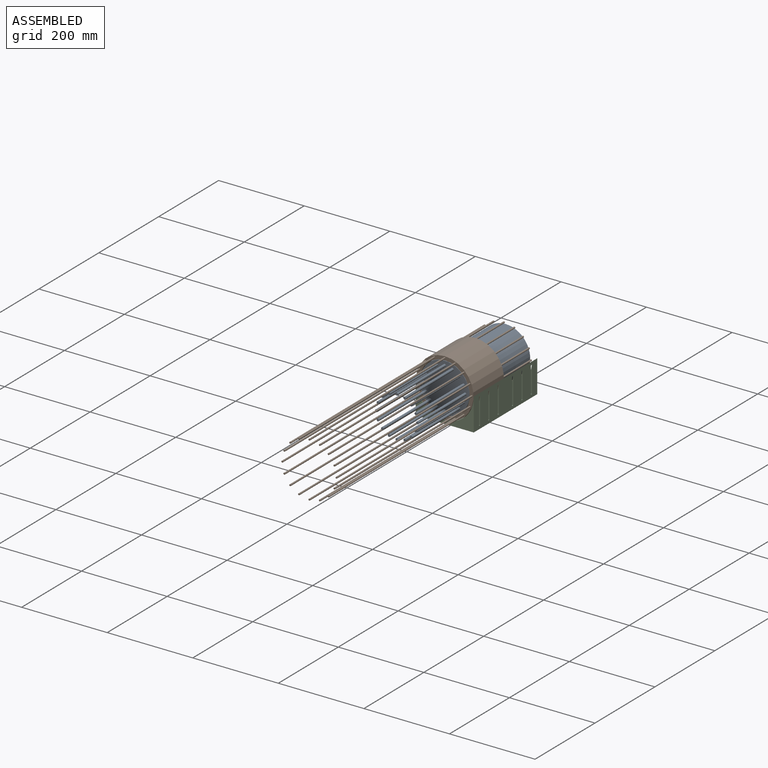
[diagram: assembled view]
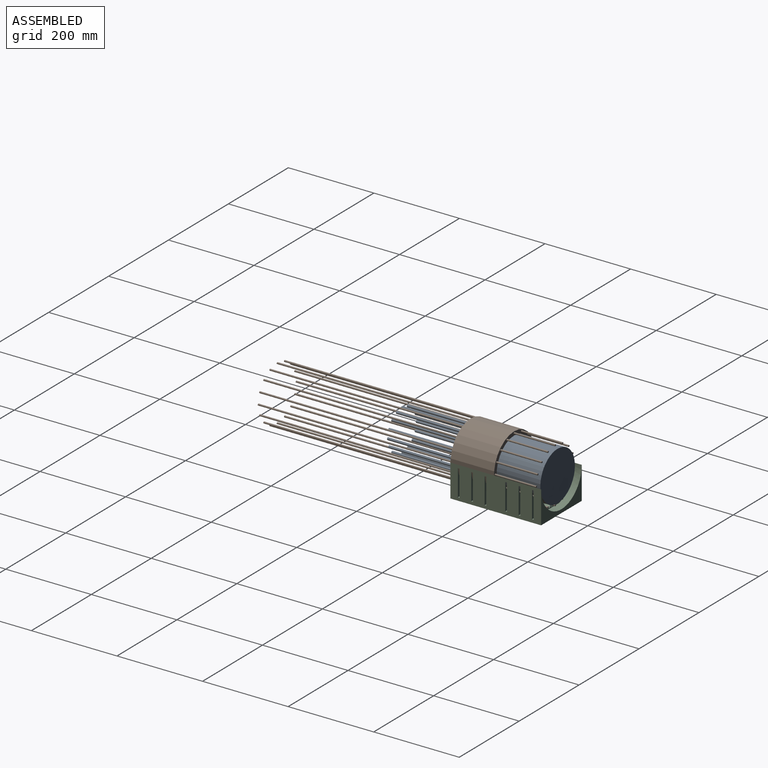
[diagram: assembled view, second angle]
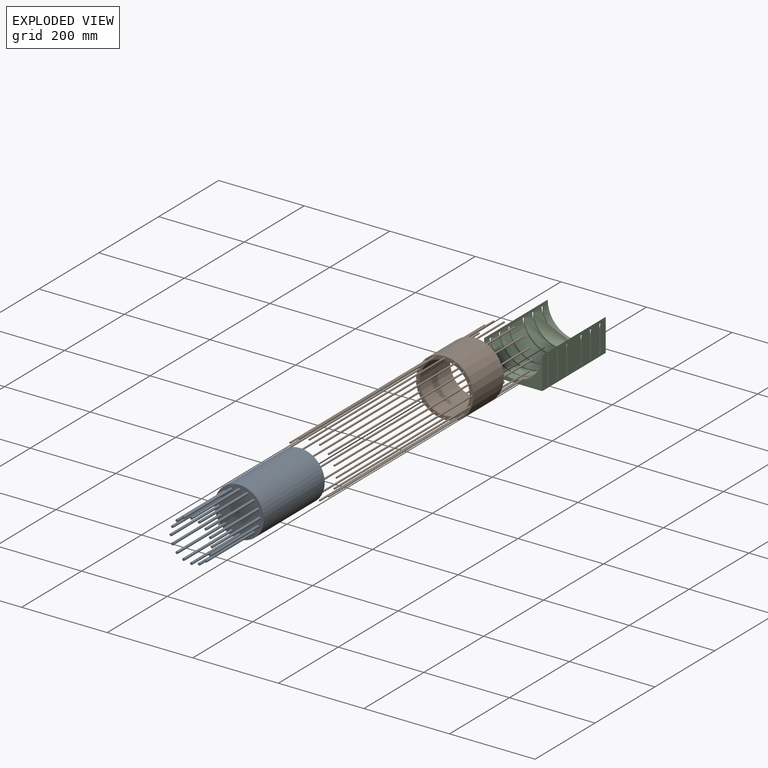
[diagram: exploded view]
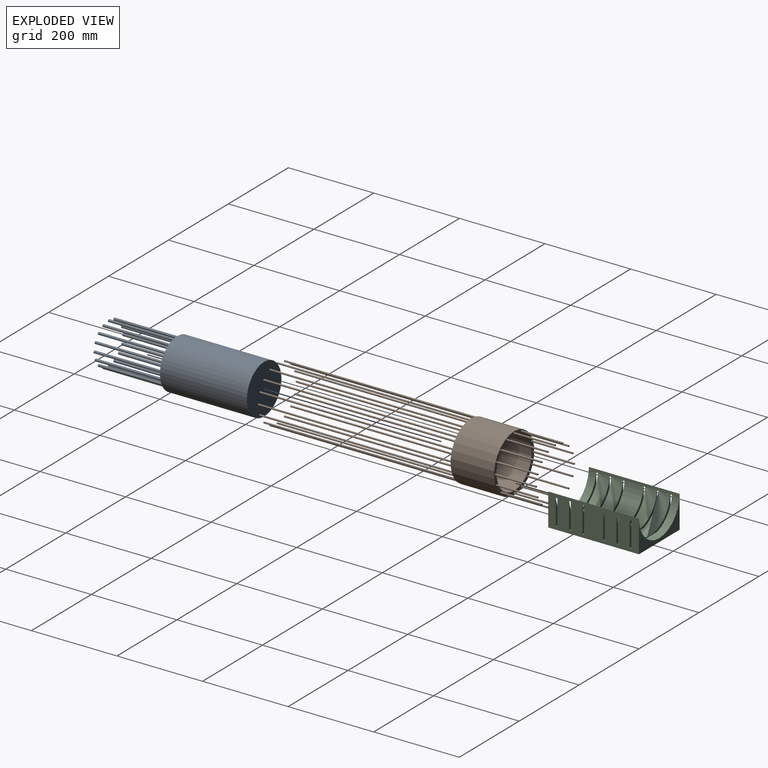
[diagram: exploded view, second angle]
ASSEMBLY  parts=3 mates=2
PART A: 35 faces, bbox 115.3x363.2x115.3 mm
  f0: cylinder r=57.63mm len=203.2mm, axis (0,1,0), area 73581.8mm2, adj f1,f2
  f1: plane 115.27x115.27mm, normal (0,-1,0), area 10009.7mm2, adj f0,f3,f5,f7,f9,f11,f13,f15
  f2: plane 115.27x115.27mm, normal (0,1,0), area 10434.8mm2, adj f0
  f3: cylinder r=2.91mm len=160.02mm, axis (0,1,0), area 2923.8mm2, adj f1,f4
  f4: plane 5.82x5.82mm, normal (0,-1,0), area 26.6mm2, adj f3
  f5: cylinder r=2.91mm len=160.02mm, axis (0,1,0), area 2923.8mm2, adj f1,f6
  f6: plane 5.82x5.82mm, normal (0,-1,0), area 26.6mm2, adj f5
  f7: cylinder r=2.91mm len=160.02mm, axis (0,1,0), area 2923.8mm2, adj f1,f8
  f8: plane 5.82x5.82mm, normal (0,-1,0), area 26.6mm2, adj f7
  f9: cylinder r=2.91mm len=160.02mm, axis (0,1,0), area 2923.8mm2, adj f1,f10
  f10: plane 5.82x5.82mm, normal (0,-1,0), area 26.6mm2, adj f9
  f11: cylinder r=2.91mm len=160.02mm, axis (0,1,0), area 2923.8mm2, adj f1,f12
  f12: plane 5.82x5.82mm, normal (0,-1,0), area 26.6mm2, adj f11
  f13: cylinder r=2.91mm len=160.02mm, axis (0,1,0), area 2923.8mm2, adj f1,f14
  f14: plane 5.82x5.82mm, normal (0,-1,0), area 26.6mm2, adj f13
  f15: cylinder r=2.91mm len=160.02mm, axis (0,1,0), area 2923.8mm2, adj f1,f16
  f16: plane 5.82x5.82mm, normal (0,-1,0), area 26.6mm2, adj f15
  f17: cylinder r=2.91mm len=160.02mm, axis (0,1,0), area 2923.8mm2, adj f1,f18
  f18: plane 5.82x5.82mm, normal (0,-1,0), area 26.6mm2, adj f17
  f19: cylinder r=2.91mm len=160.02mm, axis (0,1,0), area 2923.8mm2, adj f1,f20
  f20: plane 5.82x5.82mm, normal (0,-1,0), area 26.6mm2, adj f19
  f21: cylinder r=2.91mm len=160.02mm, axis (0,1,0), area 2923.8mm2, adj f1,f22
  f22: plane 5.82x5.82mm, normal (0,-1,0), area 26.6mm2, adj f21
  f23: cylinder r=2.91mm len=160.02mm, axis (0,1,0), area 2923.8mm2, adj f1,f24
  f24: plane 5.82x5.82mm, normal (0,-1,0), area 26.6mm2, adj f23
  f25: cylinder r=2.91mm len=160.02mm, axis (0,1,0), area 2923.8mm2, adj f1,f26
  f26: plane 5.82x5.82mm, normal (0,-1,0), area 26.6mm2, adj f25
  f27: cylinder r=2.91mm len=160.02mm, axis (0,1,0), area 2923.8mm2, adj f1,f28
  f28: plane 5.82x5.82mm, normal (0,-1,0), area 26.6mm2, adj f27
  f29: cylinder r=2.91mm len=160.02mm, axis (0,1,0), area 2923.8mm2, adj f1,f30
  f30: plane 5.82x5.82mm, normal (0,-1,0), area 26.6mm2, adj f29
  f31: cylinder r=2.91mm len=160.02mm, axis (0,1,0), area 2923.8mm2, adj f1,f32
  f32: plane 5.82x5.82mm, normal (0,-1,0), area 26.6mm2, adj f31
  f33: cylinder r=2.91mm len=160.02mm, axis (0,1,0), area 2923.8mm2, adj f1,f34
  f34: plane 5.82x5.82mm, normal (0,-1,0), area 26.6mm2, adj f33
PART B: 68 faces, bbox 134.6x650.2x134.6 mm
  f0: cylinder r=58.53mm len=117.06mm, axis (0,-1,0), area 37364.7mm2, adj f2,f3
  f1: cylinder r=67.3mm len=134.61mm, axis (0,-1,0), area 42965.4mm2, adj f2,f3
  f2: plane 134.61x134.61mm, normal (0,1,0), area 3285.9mm2, adj f0,f1,f6,f10,f14,f18,f22,f26
  f3: plane 134.61x134.61mm, normal (0,-1,0), area 3285.9mm2, adj f0,f1,f5,f9,f13,f17,f21,f25
  f4: plane 3.81x3.81mm, normal (0,-1,0), area 11.4mm2, adj f5
  f5: cylinder r=1.91mm len=452.12mm, axis (0,-1,0), area 5411.6mm2, adj f3,f4
  f6: cylinder r=1.91mm len=96.52mm, axis (0,-1,0), area 1155.3mm2, adj f2,f7
  f7: plane 3.81x3.81mm, normal (0,1,0), area 11.4mm2, adj f6
  f8: plane 3.81x3.81mm, normal (0,-1,0), area 11.4mm2, adj f9
  f9: cylinder r=1.91mm len=452.12mm, axis (0,-1,0), area 5411.6mm2, adj f3,f8
  f10: cylinder r=1.91mm len=96.52mm, axis (0,-1,0), area 1155.3mm2, adj f2,f11
  f11: plane 3.81x3.81mm, normal (0,1,0), area 11.4mm2, adj f10
  f12: plane 3.81x3.81mm, normal (0,-1,0), area 11.4mm2, adj f13
  f13: cylinder r=1.91mm len=452.12mm, axis (0,-1,0), area 5411.6mm2, adj f3,f12
  f14: cylinder r=1.91mm len=96.52mm, axis (0,-1,0), area 1155.3mm2, adj f2,f15
  f15: plane 3.81x3.81mm, normal (0,1,0), area 11.4mm2, adj f14
  f16: plane 3.81x3.81mm, normal (0,-1,0), area 11.4mm2, adj f17
  f17: cylinder r=1.91mm len=452.12mm, axis (0,-1,0), area 5411.6mm2, adj f3,f16
  f18: cylinder r=1.91mm len=96.52mm, axis (0,-1,0), area 1155.3mm2, adj f2,f19
  f19: plane 3.81x3.81mm, normal (0,1,0), area 11.4mm2, adj f18
  f20: plane 3.81x3.81mm, normal (0,-1,0), area 11.4mm2, adj f21
  f21: cylinder r=1.91mm len=452.12mm, axis (0,-1,0), area 5411.6mm2, adj f3,f20
  f22: cylinder r=1.91mm len=96.52mm, axis (0,-1,0), area 1155.3mm2, adj f2,f23
  f23: plane 3.81x3.81mm, normal (0,1,0), area 11.4mm2, adj f22
  f24: plane 3.81x3.81mm, normal (0,-1,0), area 11.4mm2, adj f25
  f25: cylinder r=1.91mm len=452.12mm, axis (0,-1,0), area 5411.6mm2, adj f3,f24
  f26: cylinder r=1.91mm len=96.52mm, axis (0,-1,0), area 1155.3mm2, adj f2,f27
  f27: plane 3.81x3.81mm, normal (0,1,0), area 11.4mm2, adj f26
  f28: plane 3.81x3.81mm, normal (0,-1,0), area 11.4mm2, adj f29
  f29: cylinder r=1.91mm len=452.12mm, axis (0,-1,0), area 5411.6mm2, adj f3,f28
  f30: cylinder r=1.91mm len=96.52mm, axis (0,-1,0), area 1155.3mm2, adj f2,f31
  f31: plane 3.81x3.81mm, normal (0,1,0), area 11.4mm2, adj f30
  f32: plane 3.81x3.81mm, normal (0,-1,0), area 11.4mm2, adj f33
  f33: cylinder r=1.91mm len=452.12mm, axis (0,-1,0), area 5411.6mm2, adj f3,f32
  f34: cylinder r=1.91mm len=96.52mm, axis (0,-1,0), area 1155.3mm2, adj f2,f35
  f35: plane 3.81x3.81mm, normal (0,1,0), area 11.4mm2, adj f34
  f36: plane 3.81x3.81mm, normal (0,-1,0), area 11.4mm2, adj f37
  f37: cylinder r=1.91mm len=452.12mm, axis (0,-1,0), area 5411.6mm2, adj f3,f36
  f38: cylinder r=1.91mm len=96.52mm, axis (0,-1,0), area 1155.3mm2, adj f2,f39
  f39: plane 3.81x3.81mm, normal (0,1,0), area 11.4mm2, adj f38
  f40: plane 3.81x3.81mm, normal (0,-1,0), area 11.4mm2, adj f41
  f41: cylinder r=1.91mm len=452.12mm, axis (0,-1,0), area 5411.6mm2, adj f3,f40
  f42: cylinder r=1.91mm len=96.52mm, axis (0,-1,0), area 1155.3mm2, adj f2,f43
  f43: plane 3.81x3.81mm, normal (0,1,0), area 11.4mm2, adj f42
  f44: plane 3.81x3.81mm, normal (0,-1,0), area 11.4mm2, adj f45
  f45: cylinder r=1.91mm len=452.12mm, axis (0,-1,0), area 5411.6mm2, adj f3,f44
  f46: cylinder r=1.91mm len=96.52mm, axis (0,-1,0), area 1155.3mm2, adj f2,f47
  f47: plane 3.81x3.81mm, normal (0,1,0), area 11.4mm2, adj f46
  f48: plane 3.81x3.81mm, normal (0,-1,0), area 11.4mm2, adj f49
  f49: cylinder r=1.91mm len=452.12mm, axis (0,-1,0), area 5411.6mm2, adj f3,f48
  f50: cylinder r=1.91mm len=96.52mm, axis (0,-1,0), area 1155.3mm2, adj f2,f51
  f51: plane 3.81x3.81mm, normal (0,1,0), area 11.4mm2, adj f50
  f52: plane 3.81x3.81mm, normal (0,-1,0), area 11.4mm2, adj f53
  f53: cylinder r=1.91mm len=452.12mm, axis (0,-1,0), area 5411.6mm2, adj f3,f52
  f54: cylinder r=1.91mm len=96.52mm, axis (0,-1,0), area 1155.3mm2, adj f2,f55
  f55: plane 3.81x3.81mm, normal (0,1,0), area 11.4mm2, adj f54
  f56: plane 3.81x3.81mm, normal (0,-1,0), area 11.4mm2, adj f57
  f57: cylinder r=1.91mm len=452.12mm, axis (0,-1,0), area 5411.6mm2, adj f3,f56
  f58: cylinder r=1.91mm len=96.52mm, axis (0,-1,0), area 1155.3mm2, adj f2,f59
  f59: plane 3.81x3.81mm, normal (0,1,0), area 11.4mm2, adj f58
  f60: plane 3.81x3.81mm, normal (0,-1,0), area 11.4mm2, adj f61
  f61: cylinder r=1.91mm len=452.12mm, axis (0,-1,0), area 5411.6mm2, adj f3,f60
  f62: cylinder r=1.91mm len=96.52mm, axis (0,-1,0), area 1155.3mm2, adj f2,f63
  f63: plane 3.81x3.81mm, normal (0,1,0), area 11.4mm2, adj f62
  f64: plane 3.81x3.81mm, normal (0,-1,0), area 11.4mm2, adj f65
  f65: cylinder r=1.91mm len=452.12mm, axis (0,-1,0), area 5411.6mm2, adj f3,f64
  f66: cylinder r=1.91mm len=96.52mm, axis (0,-1,0), area 1155.3mm2, adj f2,f67
  f67: plane 3.81x3.81mm, normal (0,1,0), area 11.4mm2, adj f66
PART C: 36 faces, bbox 135.7x212.1x75.9 mm
  f0: cylinder r=67.86mm len=212.09mm, axis (0,1,0), area 40674.3mm2, adj f1,f2,f4,f5,f6,f7,f8,f10
  f1: plane 212.09x75.95mm, normal (-1,0,0), area 14695.6mm2, adj f0,f3,f4,f5,f6,f8,f9,f10
  f2: plane 212.09x75.95mm, normal (1,0,0), area 14695.6mm2, adj f0,f3,f4,f5,f7,f8,f9,f10
  f3: plane 212.09x135.71mm, normal (0,0,-1), area 28783.7mm2, adj f1,f2,f4,f5
  f4: plane 135.71x75.95mm, normal (0,-1,0), area 3074.4mm2, adj f0,f1,f2,f3
  f5: plane 135.71x75.95mm, normal (0,1,0), area 3074.4mm2, adj f0,f1,f2,f3
  f6: plane 3.8x0.36mm, normal (0,0,-1), area 1.4mm2, adj f0,f1,f8,f10
  f7: plane 3.8x0.36mm, normal (0,0,-1), area 1.4mm2, adj f0,f2,f8,f10
  f8: plane 135.71x61.98mm, normal (0,-1,0), area 2124.7mm2, adj f0,f1,f2,f6,f7,f9
  f9: plane 135.71x3.8mm, normal (0,0,1), area 515.4mm2, adj f1,f2,f8,f10
  f10: plane 135.71x61.98mm, normal (0,1,0), area 2124.7mm2, adj f0,f1,f2,f6,f7,f9
  f11: plane 3.8x0.36mm, normal (0,0,-1), area 1.4mm2, adj f0,f1,f13,f15
  f12: plane 3.8x0.36mm, normal (0,0,-1), area 1.4mm2, adj f0,f2,f13,f15
  f13: plane 135.71x61.98mm, normal (0,-1,0), area 2124.7mm2, adj f0,f1,f2,f11,f12,f14
  f14: plane 135.71x3.8mm, normal (0,0,1), area 515.4mm2, adj f1,f2,f13,f15
  f15: plane 135.71x61.98mm, normal (0,1,0), area 2124.7mm2, adj f0,f1,f2,f11,f12,f14
  f16: plane 3.8x0.36mm, normal (0,0,-1), area 1.4mm2, adj f0,f1,f18,f20
  f17: plane 3.8x0.36mm, normal (0,0,-1), area 1.4mm2, adj f0,f2,f18,f20
  f18: plane 135.71x61.98mm, normal (0,-1,0), area 2124.7mm2, adj f0,f1,f2,f16,f17,f19
  f19: plane 135.71x3.8mm, normal (0,0,1), area 515.4mm2, adj f1,f2,f18,f20
  f20: plane 135.71x61.98mm, normal (0,1,0), area 2124.7mm2, adj f0,f1,f2,f16,f17,f19
  f21: plane 3.8x0.36mm, normal (0,0,-1), area 1.4mm2, adj f0,f2,f22,f24
  f22: plane 135.71x61.98mm, normal (0,1,0), area 2124.7mm2, adj f0,f1,f2,f21,f23,f25
  f23: plane 3.8x0.36mm, normal (0,0,-1), area 1.4mm2, adj f0,f1,f22,f24
  f24: plane 135.71x61.98mm, normal (0,-1,0), area 2124.7mm2, adj f0,f1,f2,f21,f23,f25
  f25: plane 135.71x3.8mm, normal (0,0,1), area 515.4mm2, adj f1,f2,f22,f24
  f26: plane 3.8x0.36mm, normal (0,0,-1), area 1.4mm2, adj f0,f2,f27,f29
  f27: plane 135.71x61.98mm, normal (0,1,0), area 2124.7mm2, adj f0,f1,f2,f26,f28,f30
  f28: plane 3.8x0.36mm, normal (0,0,-1), area 1.4mm2, adj f0,f1,f27,f29
  f29: plane 135.71x61.98mm, normal (0,-1,0), area 2124.7mm2, adj f0,f1,f2,f26,f28,f30
  f30: plane 135.71x3.8mm, normal (0,0,1), area 515.4mm2, adj f1,f2,f27,f29
  f31: plane 3.8x0.36mm, normal (0,0,-1), area 1.4mm2, adj f0,f2,f32,f34
  f32: plane 135.71x61.98mm, normal (0,1,0), area 2124.7mm2, adj f0,f1,f2,f31,f33,f35
  f33: plane 3.8x0.36mm, normal (0,0,-1), area 1.4mm2, adj f0,f1,f32,f34
  f34: plane 135.71x61.98mm, normal (0,-1,0), area 2124.7mm2, adj f0,f1,f2,f31,f33,f35
  f35: plane 135.71x3.8mm, normal (0,0,1), area 515.4mm2, adj f1,f2,f32,f34
PLACE A at identity
PLACE B at identity
PLACE C t=(0,25.4,0)mm
MATE fastened B.f0 <-> A.f0  axis (0,-1,0) through (0,-1073.4,0)mm
MATE fastened C.f0 <-> B.f1  axis (0,-1,0) through (0,-1073.4,0)mm
